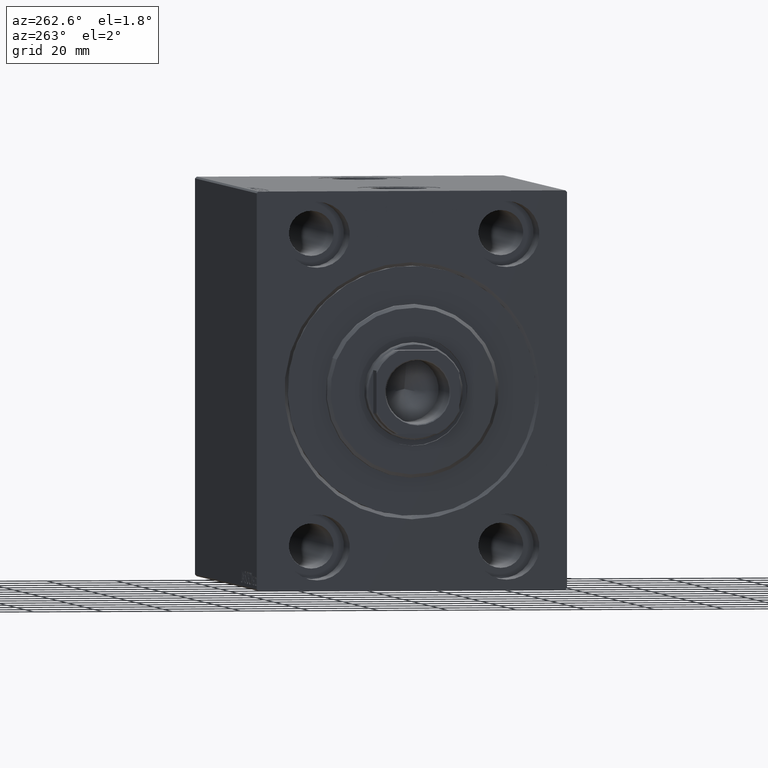
[diagram: clean part render]
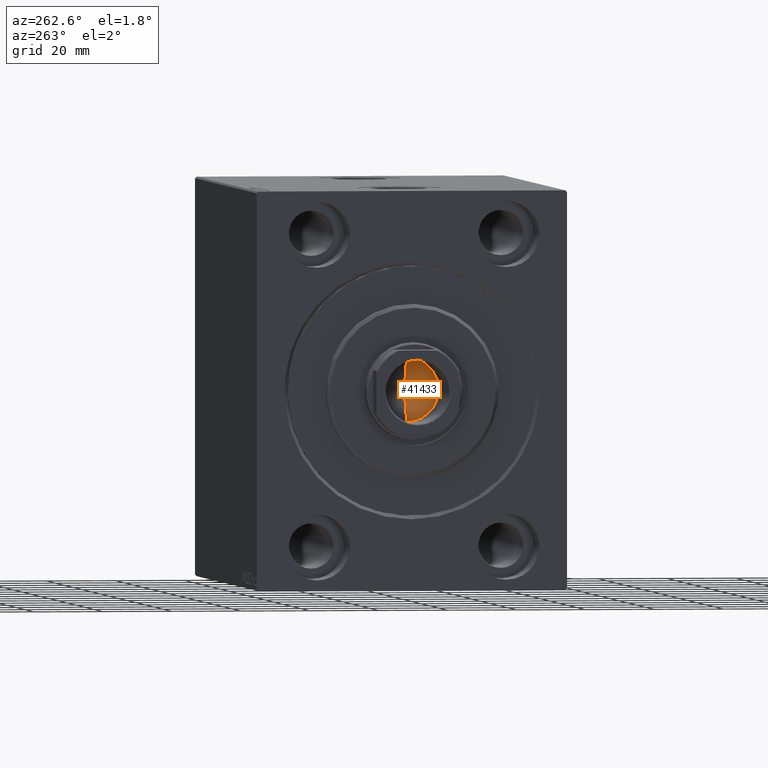
[diagram: same view with one face highlighted and labeled with its STEP entity id]
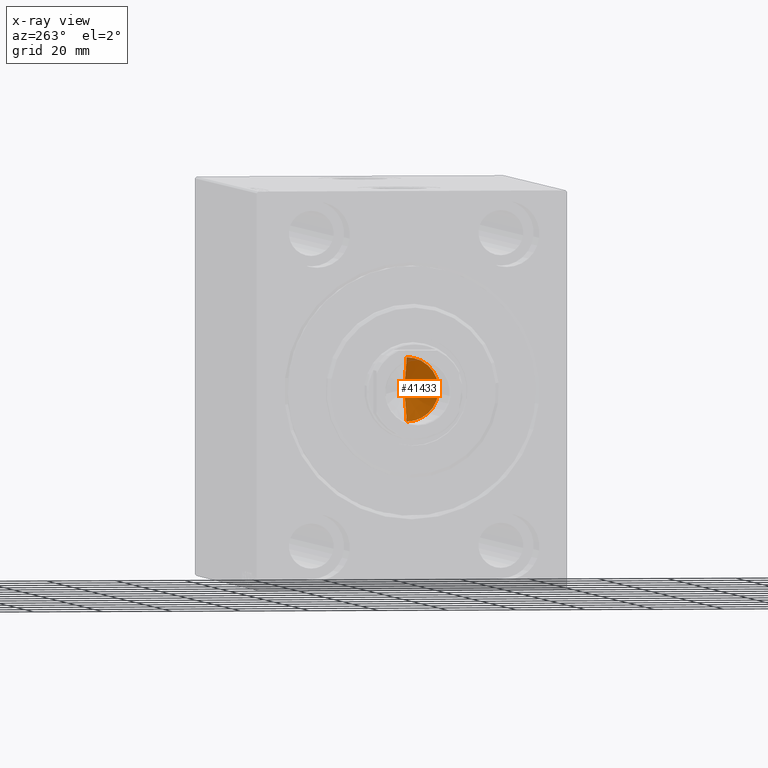
[diagram: x-ray of the same camera — body ghosted, the highlighted face saturated]
A machine part, auxiliary view. The second image highlights one B-rep face of the part: STEP entity #41433.
The next image is the same camera in x-ray: the body ghosted, the highlighted face saturated — about 2% of this face is hidden behind the body in this view.
In plain terms, the highlighted conical surface has half-angle 59 deg.
Its self-contained STEP definition (entity closure, byte-faithful):
#1040 = CARTESIAN_POINT ( 'NONE',  ( -9.249999999999994671, 1.132798289211300909E-15, 109.0000000000000142 ) ) ;
#1847 = EDGE_CURVE ( 'NONE', #35472, #36019, #11081, .T. ) ;
#2264 = ORIENTED_EDGE ( 'NONE', *, *, #1847, .T. ) ;
#3491 = ORIENTED_EDGE ( 'NONE', *, *, #13510, .T. ) ;
#4436 = AXIS2_PLACEMENT_3D ( 'NONE', #5070, #38953, #25581 ) ;
#5070 = CARTESIAN_POINT ( 'NONE',  ( 0.000000000000000000, 0.000000000000000000, 109.0000000000000142 ) ) ;
#5095 = DIRECTION ( 'NONE',  ( 0.8571673007021113344, 0.000000000000000000, 0.5150380749100558209 ) ) ;
#11081 = LINE ( 'NONE', #1040, #38104 ) ;
#11670 = AXIS2_PLACEMENT_3D ( 'NONE', #29367, #39402, #35628 ) ;
#13510 = EDGE_CURVE ( 'NONE', #36019, #42666, #35867, .T. ) ;
#14415 = CARTESIAN_POINT ( 'NONE',  ( -6.793016015247754405E-15, 0.000000000000000000, 103.4420392739950643 ) ) ;
#14882 = DIRECTION ( 'NONE',  ( -0.8571673007021113344, 1.049727191138617463E-16, 0.5150380749100558209 ) ) ;
#15334 = FACE_OUTER_BOUND ( 'NONE', #20038, .T. ) ;
#15358 = CARTESIAN_POINT ( 'NONE',  ( 9.249999999999994671, 0.000000000000000000, 109.0000000000000142 ) ) ;
#20038 = EDGE_LOOP ( 'NONE', ( #23873, #2264, #3491 ) ) ;
#20867 = CARTESIAN_POINT ( 'NONE',  ( 9.249999999999994671, 0.000000000000000000, 109.0000000000000142 ) ) ;
#22927 = CONICAL_SURFACE ( 'NONE', #4436, 9.249999999999994671, 1.029744258676652535 ) ;
#23873 = ORIENTED_EDGE ( 'NONE', *, *, #29212, .F. ) ;
#25389 = LINE ( 'NONE', #15358, #43988 ) ;
#25581 = DIRECTION ( 'NONE',  ( 1.000000000000000000, 0.000000000000000000, 0.000000000000000000 ) ) ;
#29212 = EDGE_CURVE ( 'NONE', #35472, #42666, #25389, .T. ) ;
#29367 = CARTESIAN_POINT ( 'NONE',  ( 0.000000000000000000, 0.000000000000000000, 109.0000000000000142 ) ) ;
#34305 = CARTESIAN_POINT ( 'NONE',  ( -9.249999999999994671, 1.132798289211300909E-15, 109.0000000000000142 ) ) ;
#35472 = VERTEX_POINT ( 'NONE', #14415 ) ;
#35628 = DIRECTION ( 'NONE',  ( 1.000000000000000000, 0.000000000000000000, 0.000000000000000000 ) ) ;
#35867 = CIRCLE ( 'NONE', #11670, 9.249999999999994671 ) ;
#36019 = VERTEX_POINT ( 'NONE', #34305 ) ;
#38104 = VECTOR ( 'NONE', #14882, 1000.000000000000000 ) ;
#38953 = DIRECTION ( 'NONE',  ( -0.000000000000000000, -0.000000000000000000, 1.000000000000000000 ) ) ;
#39402 = DIRECTION ( 'NONE',  ( -0.000000000000000000, -0.000000000000000000, 1.000000000000000000 ) ) ;
#41433 = ADVANCED_FACE ( 'NONE', ( #15334 ), #22927, .F. ) ;
#42666 = VERTEX_POINT ( 'NONE', #20867 ) ;
#43988 = VECTOR ( 'NONE', #5095, 1000.000000000000000 ) ;